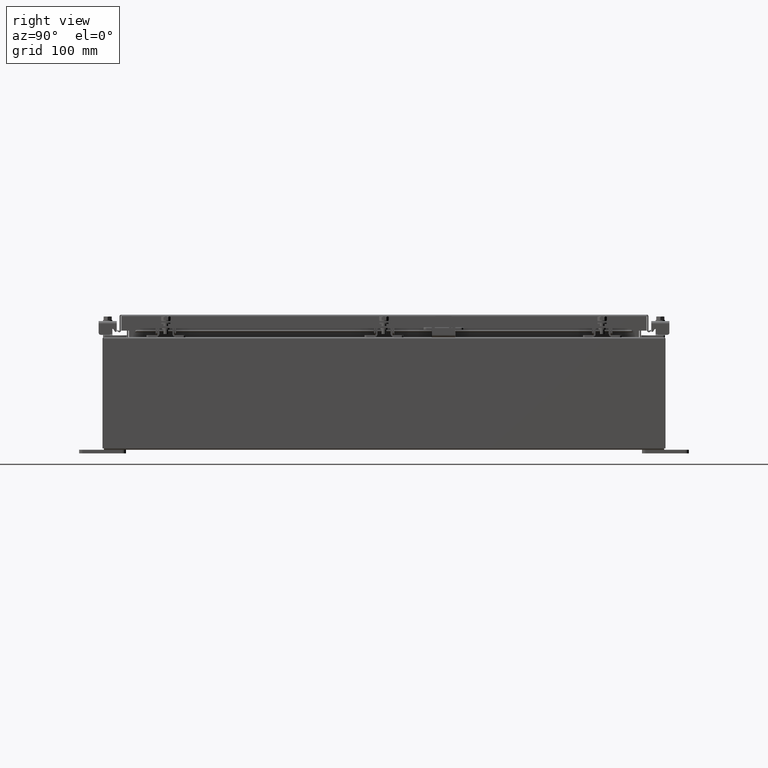
[diagram: clean part render]
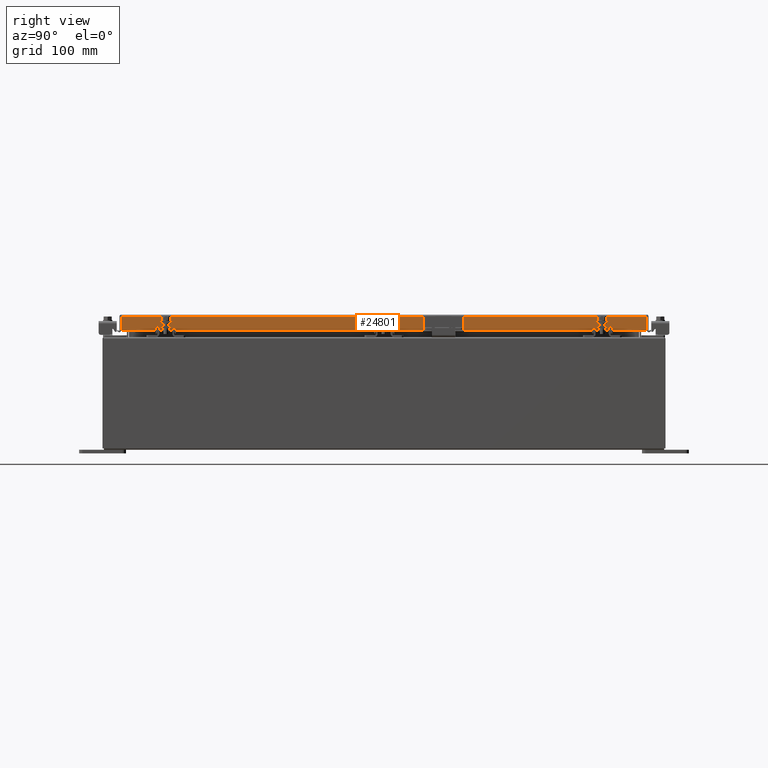
[diagram: same view with one face highlighted and labeled with its STEP entity id]
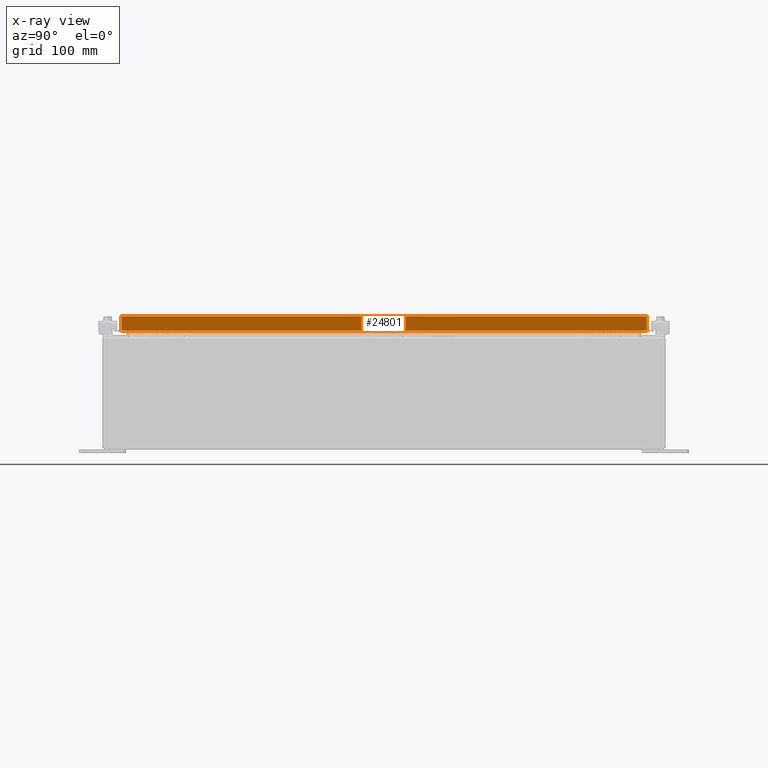
[diagram: x-ray of the same camera — body ghosted, the highlighted face saturated]
A machine part, right view. The second image highlights one B-rep face of the part: STEP entity #24801.
The next image is the same camera in x-ray: the body ghosted, the highlighted face saturated — about 0% of this face is hidden behind the body in this view.
In plain terms, the highlighted planar face has unit normal (1, 0, 0).
Its self-contained STEP definition (entity closure, byte-faithful):
#178 = AXIS2_PLACEMENT_3D ( 'NONE', #4118, #31758, #28215 ) ;
#494 = CARTESIAN_POINT ( 'NONE',  ( 9.078000000000001200, 3.399788123235819300E-018, -0.08770000000000061100 ) ) ;
#2228 = ORIENTED_EDGE ( 'NONE', *, *, #4652, .F. ) ;
#3001 = CARTESIAN_POINT ( 'NONE',  ( 9.078000000000003000, 14.00515786437627200, -0.8499999999999996400 ) ) ;
#4118 = CARTESIAN_POINT ( 'NONE',  ( 9.078000000000001200, 0.0000000000000000000, 2.585061485449906900E-014 ) ) ;
#4531 = CARTESIAN_POINT ( 'NONE',  ( 9.078000000000003000, -14.09399999999999900, -0.8499999999999996400 ) ) ;
#4652 = EDGE_CURVE ( 'NONE', #26609, #28050, #35886, .T. ) ;
#5788 = LINE ( 'NONE', #16967, #15676 ) ;
#6709 = VECTOR ( 'NONE', #24975, 39.37007874015748100 ) ;
#6905 = DIRECTION ( 'NONE',  ( 0.0000000000000000000, -1.000000000000000000, 0.0000000000000000000 ) ) ;
#7663 = LINE ( 'NONE', #10415, #6709 ) ;
#8191 = ORIENTED_EDGE ( 'NONE', *, *, #35967, .F. ) ;
#8333 = LINE ( 'NONE', #494, #27854 ) ;
#8584 = CARTESIAN_POINT ( 'NONE',  ( 9.077999999999995900, -13.25515786437626400, -0.8500000000000007500 ) ) ;
#8904 = DIRECTION ( 'NONE',  ( 0.0000000000000000000, -1.000000000000000000, 0.0000000000000000000 ) ) ;
#9018 = VERTEX_POINT ( 'NONE', #3001 ) ;
#10397 = DIRECTION ( 'NONE',  ( 1.092770575832425100E-031, -1.000000000000000000, -3.876611314976959400E-017 ) ) ;
#10415 = CARTESIAN_POINT ( 'NONE',  ( 9.077999999999995900, 13.25515786437627200, -0.8500000000000007500 ) ) ;
#11647 = CARTESIAN_POINT ( 'NONE',  ( 9.078000000000001200, -14.00515786437626900, -0.08770000000000115200 ) ) ;
#11688 = FACE_OUTER_BOUND ( 'NONE', #30805, .T. ) ;
#13438 = ORIENTED_EDGE ( 'NONE', *, *, #29668, .F. ) ;
#15515 = CARTESIAN_POINT ( 'NONE',  ( 9.078000000000003000, -14.00515786437626400, -0.8499999999999996400 ) ) ;
#15676 = VECTOR ( 'NONE', #34087, 39.37007874015748100 ) ;
#15962 = DIRECTION ( 'NONE',  ( -2.818880942772360100E-015, -6.982962677686265900E-015, 1.000000000000000000 ) ) ;
#16967 = CARTESIAN_POINT ( 'NONE',  ( 9.078000000000001200, 14.00515786437626900, 1.236481095165428500E-013 ) ) ;
#17002 = PLANE ( 'NONE',  #178 ) ;
#17036 = LINE ( 'NONE', #34060, #25427 ) ;
#17616 = EDGE_CURVE ( 'NONE', #21944, #26609, #33524, .T. ) ;
#18887 = CARTESIAN_POINT ( 'NONE',  ( 9.078000000000001200, -14.00515786437626900, -0.07469999999999978000 ) ) ;
#20691 = EDGE_CURVE ( 'NONE', #9018, #24300, #5788, .T. ) ;
#21230 = EDGE_CURVE ( 'NONE', #24300, #28050, #8333, .T. ) ;
#21944 = VERTEX_POINT ( 'NONE', #8584 ) ;
#22057 = VECTOR ( 'NONE', #8904, 39.37007874015748100 ) ;
#23858 = ORIENTED_EDGE ( 'NONE', *, *, #17616, .F. ) ;
#24118 = VECTOR ( 'NONE', #15962, 39.37007874015748100 ) ;
#24300 = VERTEX_POINT ( 'NONE', #32004 ) ;
#24801 = ADVANCED_FACE ( 'NONE', ( #11688 ), #17002, .T. ) ;
#24975 = DIRECTION ( 'NONE',  ( 0.0000000000000000000, -1.000000000000000000, 0.0000000000000000000 ) ) ;
#25410 = VERTEX_POINT ( 'NONE', #30788 ) ;
#25427 = VECTOR ( 'NONE', #6905, 39.37007874015748100 ) ;
#26609 = VERTEX_POINT ( 'NONE', #15515 ) ;
#27854 = VECTOR ( 'NONE', #10397, 39.37007874015748100 ) ;
#28050 = VERTEX_POINT ( 'NONE', #11647 ) ;
#28215 = DIRECTION ( 'NONE',  ( 2.818880942772360100E-015, 0.0000000000000000000, -1.000000000000000000 ) ) ;
#29602 = ORIENTED_EDGE ( 'NONE', *, *, #21230, .T. ) ;
#29668 = EDGE_CURVE ( 'NONE', #9018, #25410, #17036, .T. ) ;
#30788 = CARTESIAN_POINT ( 'NONE',  ( 9.077999999999995900, 13.25515786437627100, -0.8500000000000007500 ) ) ;
#30805 = EDGE_LOOP ( 'NONE', ( #2228, #23858, #8191, #13438, #31900, #29602 ) ) ;
#31758 = DIRECTION ( 'NONE',  ( 1.000000000000000000, 0.0000000000000000000, 2.818880942772360100E-015 ) ) ;
#31900 = ORIENTED_EDGE ( 'NONE', *, *, #20691, .T. ) ;
#32004 = CARTESIAN_POINT ( 'NONE',  ( 9.078000000000001200, 14.00515786437626500, -0.08770000000000061100 ) ) ;
#33524 = LINE ( 'NONE', #4531, #22057 ) ;
#34060 = CARTESIAN_POINT ( 'NONE',  ( 9.078000000000003000, -14.09399999999999900, -0.8499999999999996400 ) ) ;
#34087 = DIRECTION ( 'NONE',  ( -2.818880942772360100E-015, -6.982962677686265900E-015, 1.000000000000000000 ) ) ;
#35886 = LINE ( 'NONE', #18887, #24118 ) ;
#35967 = EDGE_CURVE ( 'NONE', #25410, #21944, #7663, .T. ) ;